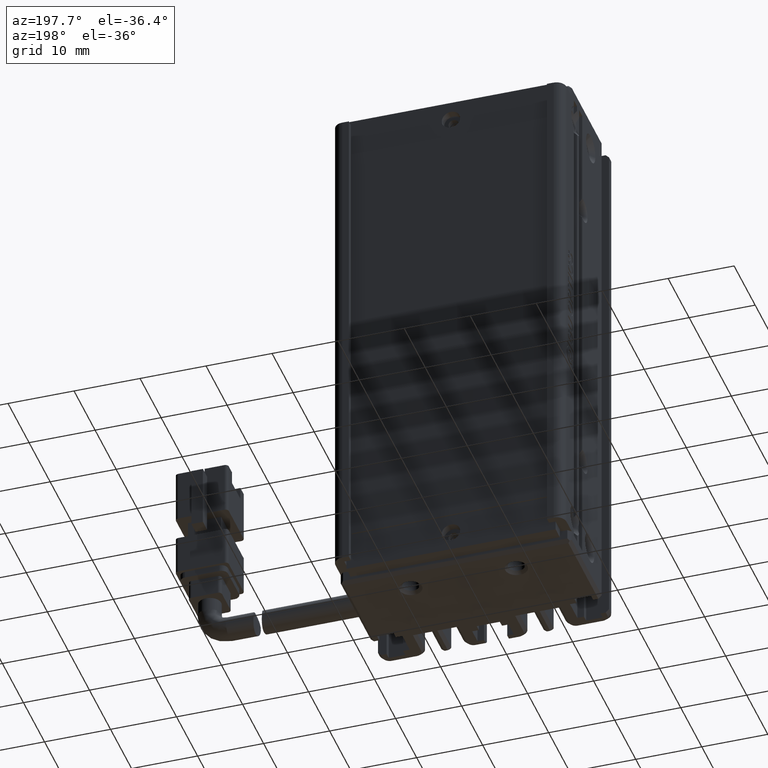
[diagram: clean part render]
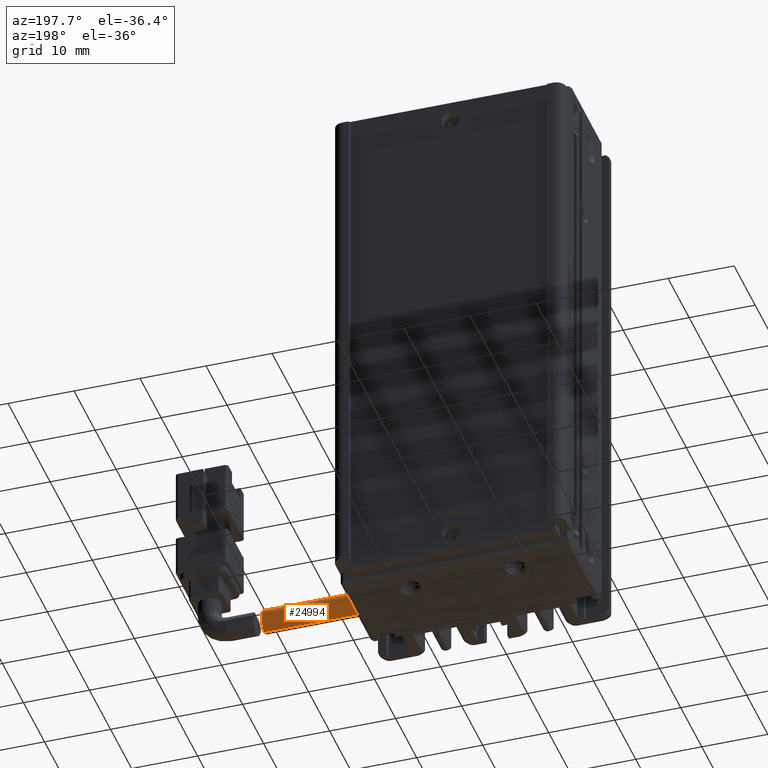
[diagram: same view with one face highlighted and labeled with its STEP entity id]
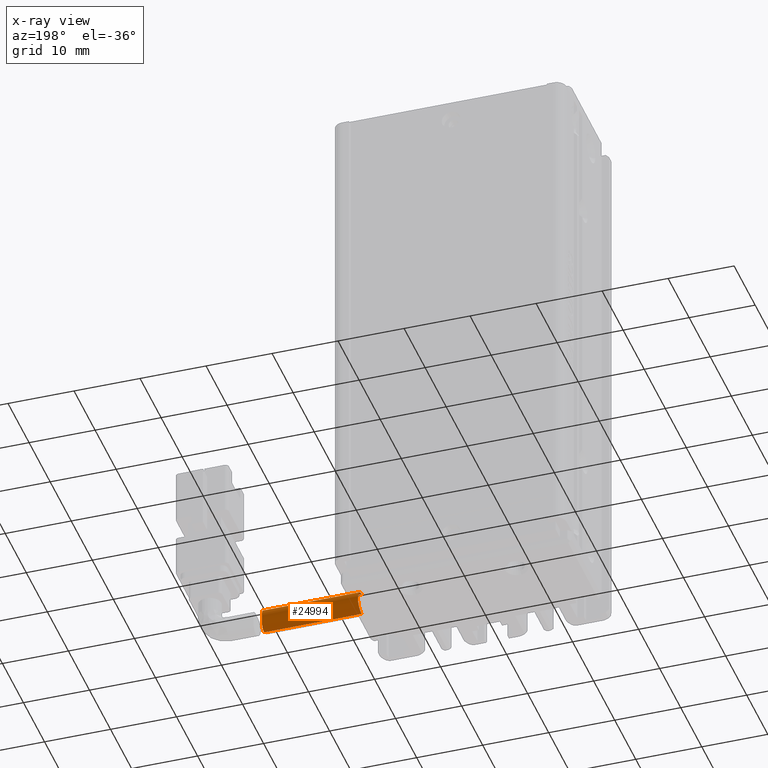
[diagram: x-ray of the same camera — body ghosted, the highlighted face saturated]
A machine part, auxiliary view. The second image highlights one B-rep face of the part: STEP entity #24994.
The next image is the same camera in x-ray: the body ghosted, the highlighted face saturated — about 0% of this face is hidden behind the body in this view.
In plain terms, the highlighted cylindrical surface (edge-blend (fillet) strip) has radius 1.75 mm, axis along (-1, -0, -0).
Its self-contained STEP definition (entity closure, byte-faithful):
#2186 = B_SPLINE_CURVE_WITH_KNOTS ( 'NONE', 3,
 ( #11701, #20361, #5892, #35222, #32259, #32116, #14156, #14669, #11190, #17132, #14291, #17652, #23446, #20104, #34834, #26260, #23581, #2794, #26016, #17389, #37932, #23327, #17524, #2917, #5770, #17271 ),
 .UNSPECIFIED., .F., .F.,
 ( 4, 2, 2, 2, 2, 2, 2, 2, 2, 2, 2, 2, 4 ),
 ( 0.005490571999674974400, 0.005833718808239041600, 0.006176865616803108700, 0.006520012425367175900, 0.006863159233931243100, 0.007549452851059314100, 0.008235746468187385100, 0.008578893276751462700, 0.008922040085315538500, 0.009608333702443773400, 0.009951480511007890900, 0.01029462731957200800, 0.01098092093670027600 ),
 .UNSPECIFIED. ) ;
#2203 = EDGE_LOOP ( 'NONE', ( #19827, #13185, #15707, #19807 ) ) ;
#2794 = CARTESIAN_POINT ( 'NONE',  ( 73.05492445293647600, 22.61977546981317000, -153.1316429091016600 ) ) ;
#2917 = CARTESIAN_POINT ( 'NONE',  ( 73.19668055208006800, 21.55177912622208300, -153.9536289975072200 ) ) ;
#3041 = CARTESIAN_POINT ( 'NONE',  ( 58.42537974683536100, 21.09073232304852000, -152.2500000000000600 ) ) ;
#4199 = CARTESIAN_POINT ( 'NONE',  ( 73.16909918599564800, 21.09073232304856700, -150.5000000000000900 ) ) ;
#4307 = VERTEX_POINT ( 'NONE', #26636 ) ;
#5038 = CARTESIAN_POINT ( 'NONE',  ( 58.42537974683536100, 21.09073232304852000, -150.5000000000000600 ) ) ;
#5770 = CARTESIAN_POINT ( 'NONE',  ( 73.20621967933266200, 21.32282869244825500, -154.0000000000000300 ) ) ;
#5892 = CARTESIAN_POINT ( 'NONE',  ( 73.16564187166542900, 21.32081579437508600, -150.5114329739077200 ) ) ;
#6125 = DIRECTION ( 'NONE',  ( 0.0000000000000000000, 0.0000000000000000000, 1.000000000000000000 ) ) ;
#6686 = LINE ( 'NONE', #33352, #26393 ) ;
#9965 = FACE_OUTER_BOUND ( 'NONE', #2203, .T. ) ;
#10032 = EDGE_CURVE ( 'NONE', #25713, #32032, #6686, .T. ) ;
#10884 = CYLINDRICAL_SURFACE ( 'NONE', #16848, 1.750000000000001600 ) ;
#11124 = DIRECTION ( 'NONE',  ( -1.000000000000000000, -3.304235192336770000E-015, -8.579261317967046800E-031 ) ) ;
#11190 = CARTESIAN_POINT ( 'NONE',  ( 73.06343873949748500, 22.24709544356477800, -150.9315777397998500 ) ) ;
#11701 = CARTESIAN_POINT ( 'NONE',  ( 73.16909918599564800, 21.09073232304856700, -150.5000000000000900 ) ) ;
#12647 = CARTESIAN_POINT ( 'NONE',  ( 78.42537974683536100, 21.09073232304858400, -154.0000000000000600 ) ) ;
#13185 = ORIENTED_EDGE ( 'NONE', *, *, #14896, .T. ) ;
#14156 = CARTESIAN_POINT ( 'NONE',  ( 73.10664507071447800, 21.96783389789093700, -150.7313779437376100 ) ) ;
#14291 = CARTESIAN_POINT ( 'NONE',  ( 72.99693793915952300, 22.61894157653051700, -151.3672986979646000 ) ) ;
#14669 = CARTESIAN_POINT ( 'NONE',  ( 73.07835221810199800, 22.15760743916210600, -150.8581316121934000 ) ) ;
#14896 = EDGE_CURVE ( 'NONE', #28088, #4307, #36216, .T. ) ;
#15707 = ORIENTED_EDGE ( 'NONE', *, *, #20636, .T. ) ;
#16848 = AXIS2_PLACEMENT_3D ( 'NONE', #25950, #11124, #31680 ) ;
#17132 = CARTESIAN_POINT ( 'NONE',  ( 73.02159805663031000, 22.48828370669177100, -151.1725020553221800 ) ) ;
#17271 = CARTESIAN_POINT ( 'NONE',  ( 73.20621967933266200, 21.09073232304856700, -154.0000000000000600 ) ) ;
#17389 = CARTESIAN_POINT ( 'NONE',  ( 73.12463420223008400, 22.24847476324766000, -153.5673024940899200 ) ) ;
#17524 = CARTESIAN_POINT ( 'NONE',  ( 73.17113496622535300, 21.86883414955936900, -153.8216747521505300 ) ) ;
#17652 = CARTESIAN_POINT ( 'NONE',  ( 72.97024437261939100, 22.79420936625598800, -151.7887505292056000 ) ) ;
#19807 = ORIENTED_EDGE ( 'NONE', *, *, #10032, .F. ) ;
#19827 = ORIENTED_EDGE ( 'NONE', *, *, #35296, .T. ) ;
#20104 = CARTESIAN_POINT ( 'NONE',  ( 72.98134991565430600, 22.84078982580402700, -152.3637194744111700 ) ) ;
#20361 = CARTESIAN_POINT ( 'NONE',  ( 73.16909918599564800, 21.20680859003607600, -150.5000000000000600 ) ) ;
#20636 = EDGE_CURVE ( 'NONE', #4307, #32032, #26210, .T. ) ;
#21332 = DIRECTION ( 'NONE',  ( -1.000000000000000000, -3.304235192336770000E-015, -8.579261317967046800E-031 ) ) ;
#23327 = CARTESIAN_POINT ( 'NONE',  ( 73.16064130294128600, 21.97141064514803700, -153.7665380968414900 ) ) ;
#23446 = CARTESIAN_POINT ( 'NONE',  ( 72.96799919059762400, 22.84061665153340200, -152.0199166147518200 ) ) ;
#23581 = CARTESIAN_POINT ( 'NONE',  ( 73.01781632386865800, 22.75157741340439100, -152.8132809039904900 ) ) ;
#24262 = DIRECTION ( 'NONE',  ( -1.000000000000000000, -3.304235192336770000E-015, -8.579261317967046800E-031 ) ) ;
#24994 = ADVANCED_FACE ( 'NONE', ( #9965 ), #10884, .T. ) ;
#25713 = VERTEX_POINT ( 'NONE', #4199 ) ;
#25950 = CARTESIAN_POINT ( 'NONE',  ( 78.42537974683536100, 21.09073232304858400, -152.2500000000000600 ) ) ;
#26016 = CARTESIAN_POINT ( 'NONE',  ( 73.08400798320376200, 22.49150646391436200, -153.3237529889950700 ) ) ;
#26210 = CIRCLE ( 'NONE', #35590, 1.750000000000001600 ) ;
#26260 = CARTESIAN_POINT ( 'NONE',  ( 73.00678294115662900, 22.78463344848184800, -152.7041675512314500 ) ) ;
#26393 = VECTOR ( 'NONE', #21332, 1000.000000000000000 ) ;
#26636 = CARTESIAN_POINT ( 'NONE',  ( 58.42537974683536100, 21.09073232304854500, -154.0000000000000600 ) ) ;
#27095 = VECTOR ( 'NONE', #24262, 1000.000000000000000 ) ;
#28088 = VERTEX_POINT ( 'NONE', #32925 ) ;
#31680 = DIRECTION ( 'NONE',  ( 0.0000000000000000000, 0.0000000000000000000, 1.000000000000000000 ) ) ;
#32032 = VERTEX_POINT ( 'NONE', #5038 ) ;
#32116 = CARTESIAN_POINT ( 'NONE',  ( 73.12003836585685700, 21.86761315901732400, -150.6777216974356600 ) ) ;
#32259 = CARTESIAN_POINT ( 'NONE',  ( 73.14312513808742700, 21.65618387698944100, -150.5899194494977000 ) ) ;
#32625 = DIRECTION ( 'NONE',  ( 1.000000000000000000, 3.304235192336770000E-015, 8.579261317967046800E-031 ) ) ;
#32925 = CARTESIAN_POINT ( 'NONE',  ( 73.20621967933266200, 21.09073232304856700, -154.0000000000000600 ) ) ;
#33352 = CARTESIAN_POINT ( 'NONE',  ( 78.42537974683536100, 21.09073232304858400, -150.5000000000000600 ) ) ;
#34834 = CARTESIAN_POINT ( 'NONE',  ( 72.98855349268927700, 22.82932324687323300, -152.4799364845565600 ) ) ;
#35222 = CARTESIAN_POINT ( 'NONE',  ( 73.15272929082429700, 21.54491196028726200, -150.5561066842593300 ) ) ;
#35296 = EDGE_CURVE ( 'NONE', #25713, #28088, #2186, .T. ) ;
#35590 = AXIS2_PLACEMENT_3D ( 'NONE', #3041, #32625, #6125 ) ;
#36216 = LINE ( 'NONE', #12647, #27095 ) ;
#37932 = CARTESIAN_POINT ( 'NONE',  ( 73.13743220877901800, 22.16061969415859100, -153.6395406144934300 ) ) ;